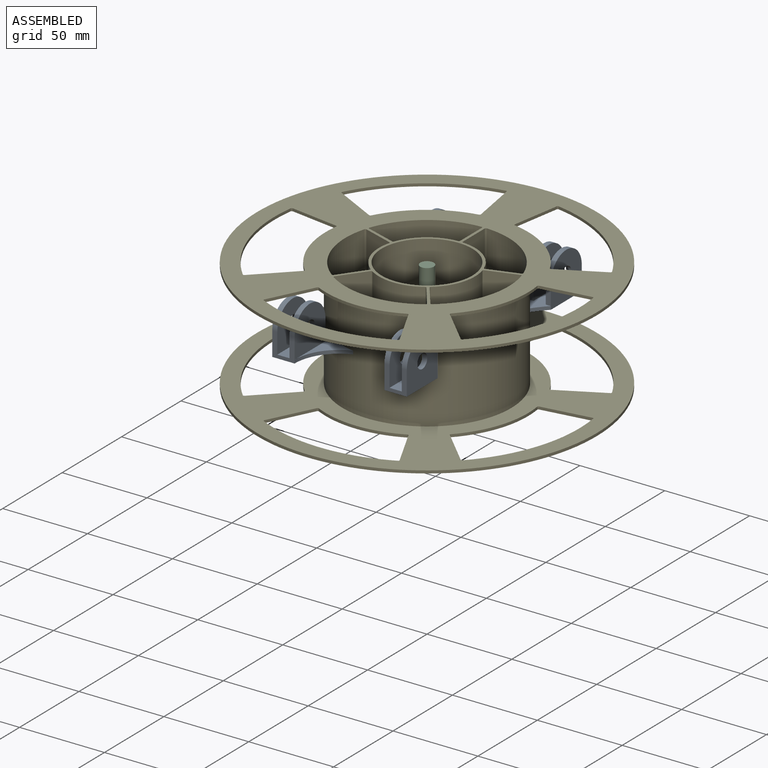
[diagram: assembled view]
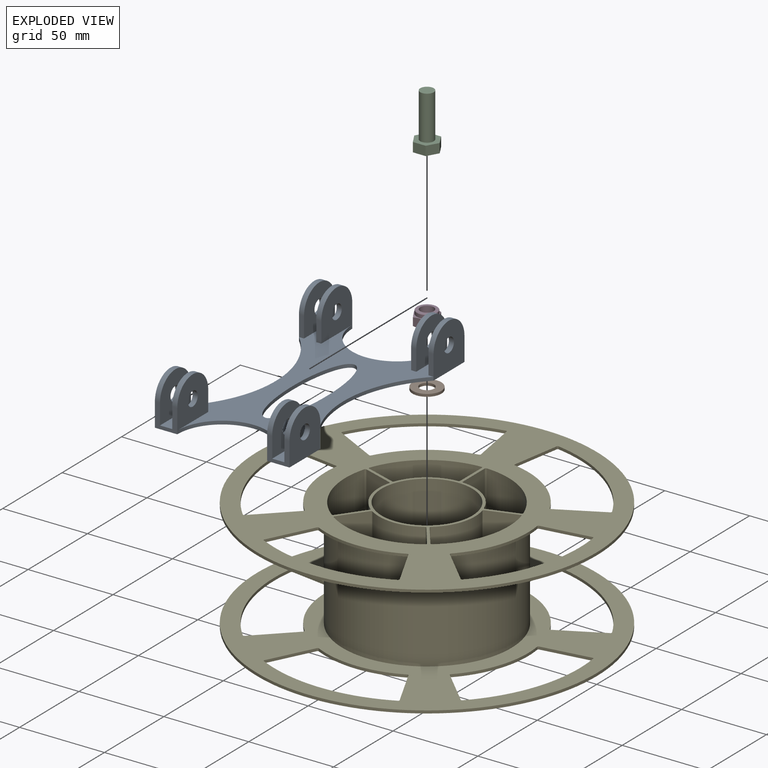
[diagram: exploded view]
GUIDED TOUR — FREECAD ASSEMBLY "FilamentSpoolRoller"

This assembly has 5 components, labeled P0..P4 below (a component is one placed body or linked part; the same part can appear more than once), held together by 0 modeled joints plus 7 derived contact edges. A joint is a constraint between two components; its type names the relative motion it leaves free:
  CONTACT — a derived adjacency edge — the two components touch in the source model (clearance under 2% of the assembly's diagonal); it is measured from the geometry, not a modeled constraint.
Axis/direction vectors are unit vectors and 'through' points are millimeter coordinates, both in the assembly's world frame.

MATES
  1. CONTACT "contact_0_1": P0 <-> P1, contact direction (0.000, 0.000, -1.000) through (9.24, 0.46, 0.00) mm (derived from contact, not a modeled constraint)
  2. CONTACT "contact_0_2": P0 <-> P2, contact direction (0.000, 0.000, 1.000) through (8.75, 0.25, 0.00) mm (derived from contact, not a modeled constraint)
  3. CONTACT "contact_0_3": P0 <-> P3, contact direction (0.000, 0.000, -1.000) through (8.75, 0.25, 0.25) mm (derived from contact, not a modeled constraint)
  4. CONTACT "contact_0_4": P0 <-> P4, contact direction (0.000, 0.000, -1.000) through (-26.73, -55.20, 28.80) mm (derived from contact, not a modeled constraint)
  5. CONTACT "contact_1_2": P1 <-> P2, contact direction (0.000, 0.000, 1.000) through (8.00, 0.00, 0.00) mm (derived from contact, not a modeled constraint)
  6. CONTACT "contact_1_3": P1 <-> P3, contact direction (0.000, 0.000, 1.000) through (0.31, 4.09, 0.00) mm (derived from contact, not a modeled constraint)
  7. CONTACT "contact_2_3": P2 <-> P3, contact direction (0.000, 0.000, -1.000) through (7.51, 0.00, 0.25) mm (derived from contact, not a modeled constraint)

ASSEMBLY ORDER
  1. P3 — the base component [order verified]
  2. P1 [order verified]
  3. P4 [order verified]
  4. P0 [order verified]
  5. P2 [order verified]
(P1, P2 verified with a relaxed clearance tolerance: the source model stores slight part interference there.)
Order-tag legend:
  [order verified] — this step's position reverses a verified removal order: the component was checked to insert without passing through the ones already placed.

Of the 5 components, 5 carry a construction recipe — the FreeCAD feature program (sketches with constraints, then the solid features that consume them) that regenerates the part from scratch, quoted from this document or from the linked companion document it references; the rest are supplied as boundary geometry only. The tour below walks the components in assembly order: each is shown spotlighted twice — in the assembled view, then in the exploded view, where a leader line traces a displaced component back to its assembled socket (components that stay in place when exploded have no leader line; saturated green if recipe-attached, orange if geometry-only; every other component desaturated gray) — followed by its recipe or geometry summary and the mates that hold it.
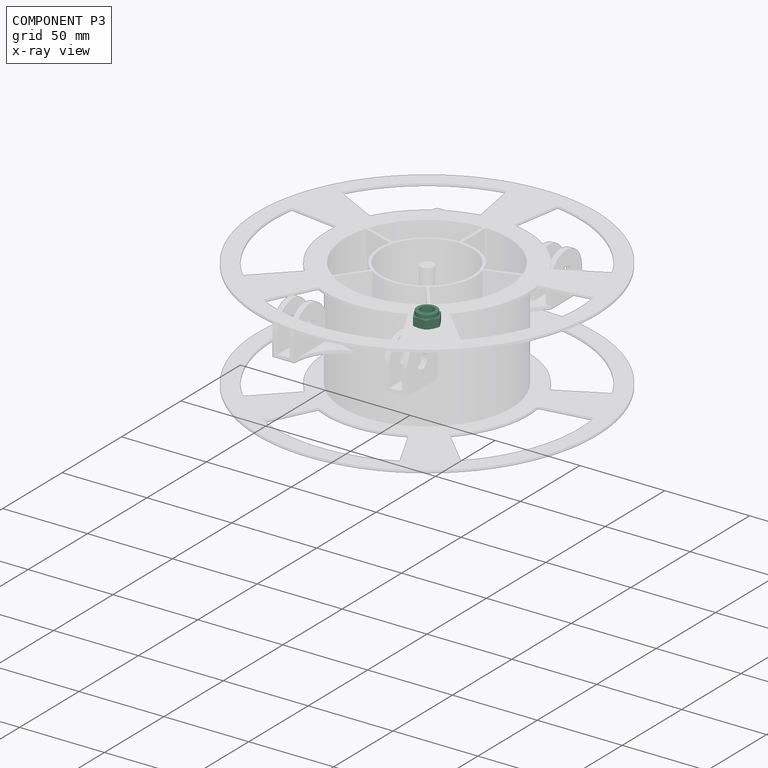
[diagram: component P3 — x-ray view]
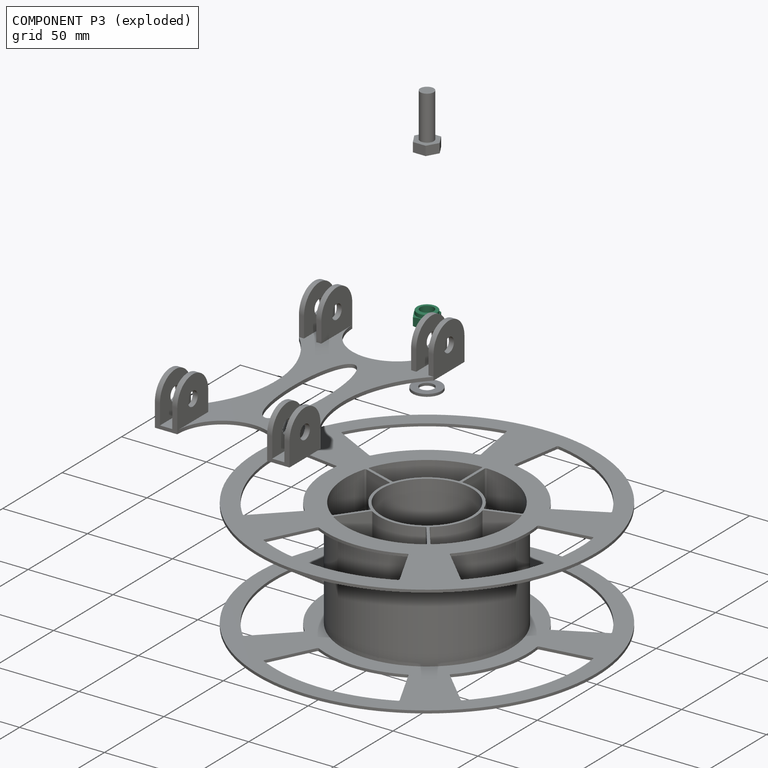
[diagram: component P3 — exploded]
COMPONENT P3 — recipe-attached ("Nut", modeled in this document).
Held by: resting contact with P0 (derived edge); resting contact with P1 (derived edge); resting contact with P2 (derived edge).
Construction recipe (the document's own serialized feature program — sketch geometry with constraints, then the solid features built on it; lengths are millimeters unless a unit is written):

FEATURE [Sketcher::SketchObject] Sketch007
  ArcFitTolerance = 1e-06
  AttachmentSupport = -> [XY_Plane004]
  FullyConstrained = true
  MakeInternals = false
  MapMode = 5
  expr: Constraints[19] = <<Spreadsheet>>.NutSize
  expr: Constraints[21] = <<Spreadsheet>>.BoltDiameter
  sketch-geometry (8):
    g0: LineSegment StartX=7.50555 StartY=0 StartZ=0 EndX=3.75278 EndY=6.5 EndZ=0
    g1: LineSegment StartX=3.75278 StartY=6.5 StartZ=0 EndX=-3.75278 EndY=6.5 EndZ=0
    g2: LineSegment StartX=-3.75278 StartY=6.5 StartZ=0 EndX=-7.50555 EndY=0 EndZ=0
    g3: LineSegment StartX=-7.50555 StartY=0 StartZ=0 EndX=-3.75278 EndY=-6.5 EndZ=0
    g4: LineSegment StartX=-3.75278 StartY=-6.5 StartZ=0 EndX=3.75278 EndY=-6.5 EndZ=0
    g5: LineSegment StartX=3.75278 StartY=-6.5 StartZ=0 EndX=7.50555 EndY=0 EndZ=0
    g6: Circle [constr] CenterX=0 CenterY=0 CenterZ=0 NormalX=0 NormalY=0 NormalZ=1 AngleXU=0 Radius=7.50555
    g7: Circle CenterX=0 CenterY=0 CenterZ=0 NormalX=0 NormalY=0 NormalZ=1 AngleXU=0 Radius=4
  constraints (18):
    c: Coincident(g0,g1)
    c: Coincident(g1,g2)
    c: Coincident(g2,g3)
    c: Coincident(g3,g4)
    c: Coincident(g4,g5)
    c: Coincident(g5,g0)
    c: Equal(g0, g1-g5) x5
    c: PointOnObject(g0,g6)
    c: PointOnObject(g1,g6)
    c: PointOnObject(g2,g6)
    c: PointOnObject(g3,g6)
    c: PointOnObject(g4,g6)
    c: PointOnObject(g5,g6)
    c: Coincident(g6,g-1)
    c: PointOnObject(g5,g-1)
    c: DistanceY(g3,g1) = 13
    c: Coincident(g7,g6)
    c: Diameter(g7) = 8
FEATURE [PartDesign::Pad] Pad004
  Direction = (0,0,1)
  Length = 5.5
  Length2 = 10
  Profile = -> Sketch007
  ReferenceAxis = -> Sketch007 [N_Axis]
  Refine = true
  Suppressed = false
  Type = 0
  expr: Length = <<Spreadsheet>>.NutHeight
FEATURE [Sketcher::SketchObject] Sketch008
  ArcFitTolerance = 1e-06
  AttachmentSupport = -> [XZ_Plane004]
  ExternalGeometry = -> [Pad004]
  FullyConstrained = true
  MakeInternals = false
  MapMode = 5
  Placement = pos=(0,0,0) rot=(1,0,0;1.5708rad)
  expr: Constraints[13] = <<Spreadsheet>>.LockNutTotalHeight
  expr: Constraints[14] = <<Spreadsheet>>.BoltDiameter / 2 + 2 mm
  expr: Constraints[8] = Spreadsheet.BoltDiameter / 2
  sketch-geometry (6):
    g0: LineSegment StartX=4 StartY=5.5 StartZ=0 EndX=6 EndY=5.5 EndZ=0
    g1: LineSegment StartX=6 StartY=5.5 StartZ=0 EndX=6 EndY=7.4 EndZ=0
    g2: LineSegment StartX=5.5 StartY=7.9 StartZ=0 EndX=4 EndY=7.9 EndZ=0
    g3: LineSegment StartX=4 StartY=7.9 StartZ=0 EndX=4 EndY=5.5 EndZ=0
    g4: ArcOfCircle CenterX=5.5 CenterY=7.4 CenterZ=0 NormalX=0 NormalY=0 NormalZ=1 AngleXU=0 Radius=0.5 StartAngle=7.003e-13 EndAngle=1.5708
    g5: GeomPoint [constr] X=6 Y=7.9 Z=0
  constraints (16):
    c: Horizontal(g0)
    c: Coincident(g0,g1)
    c: Vertical(g1)
    c: Horizontal(g2)
    c: Coincident(g2,g3)
    c: Coincident(g3,g0)
    c: Vertical(g3)
    c: PointOnObject(g0,g-3)
    c: DistanceX(g-1,g0) = 4
    c: PointOnObject(g5,g1)
    c: PointOnObject(g5,g2)
    c: Tangent(g1,g4) = -1.5708
    c: Tangent(g2,g4) = -1.5708
    c: DistanceY(g2) = 7.9
    c: DistanceX(g0) = 6
    c: Radius(g4) = 0.5
FEATURE [PartDesign::Revolution] Revolution
  Angle = 360
  Angle2 = 60
  Axis = (0,2e-16,1)
  Base = (0,0,0)
  BaseFeature = -> Pad004
  Profile = -> Sketch008
  ReferenceAxis = -> Sketch008 [V_Axis]
  Refine = true
  Reversed = true
  Suppressed = false
  Type = 0
FEATURE [Sketcher::SketchObject] Sketch009
  ArcFitTolerance = 1e-06
  AttachmentSupport = -> [XZ_Plane004]
  ExternalGeometry = -> [Revolution]
  FullyConstrained = true
  MakeInternals = false
  MapMode = 5
  Placement = pos=(0,0,0) rot=(1,0,0;1.5708rad)
  sketch-geometry (6):
    g0: LineSegment StartX=7.50555 StartY=5.5 StartZ=0 EndX=6.30555 EndY=5.5 EndZ=0
    g1: LineSegment StartX=6.30555 StartY=5.5 StartZ=0 EndX=7.50555 EndY=5 EndZ=0
    g2: LineSegment StartX=7.50555 StartY=5 StartZ=0 EndX=7.50555 EndY=5.5 EndZ=0
    g3: LineSegment StartX=7.50555 StartY=0 StartZ=0 EndX=6.30555 EndY=0 EndZ=0
    g4: LineSegment StartX=6.30555 StartY=0 StartZ=0 EndX=7.50555 EndY=0.5 EndZ=0
    g5: LineSegment StartX=7.50555 StartY=0.5 StartZ=0 EndX=7.50555 EndY=0 EndZ=0
  constraints (16):
    c: Coincident(g-3,g0)
    c: Horizontal(g0)
    c: Coincident(g0,g1)
    c: PointOnObject(g1,g-3)
    c: Coincident(g1,g2)
    c: Coincident(g2,g0)
    c: Coincident(g-3,g3)
    c: PointOnObject(g3,g-1)
    c: Coincident(g3,g4)
    c: PointOnObject(g4,g-3)
    c: Coincident(g4,g5)
    c: Coincident(g5,g3)
    c: Equal(g5,g2)
    c: Equal(g3,g0)
    c: DistanceY(g2,g2) = 0.5
    c: DistanceX(g0,g0) = 1.2
FEATURE [PartDesign::Groove] Groove001
  Angle = 360
  Angle2 = 60
  Axis = (0,2e-16,1)
  Base = (0,0,0)
  BaseFeature = -> Revolution
  Profile = -> Sketch009
  ReferenceAxis = -> Sketch009 [V_Axis]
  Refine = true
  Suppressed = false
  Type = 0
FEATURE [PartDesign::CoordinateSystem] MountFace002
  AttacherType = Attacher::AttachEngine3D
  AttachmentSupport = -> [Groove001]
  MapMode = 11
  Placement = pos=(0,0,0) rot=(0,0,1;1.5708rad)
FEATURE [PartDesign::Body] Body003  label="Nut"
  AllowCompound = false
  Group = -> [Sketch007,Pad004,Sketch008,Revolution,Sketch009,Groove001,MountFace002]
  Origin = -> Origin004
  Tip = -> Groove001
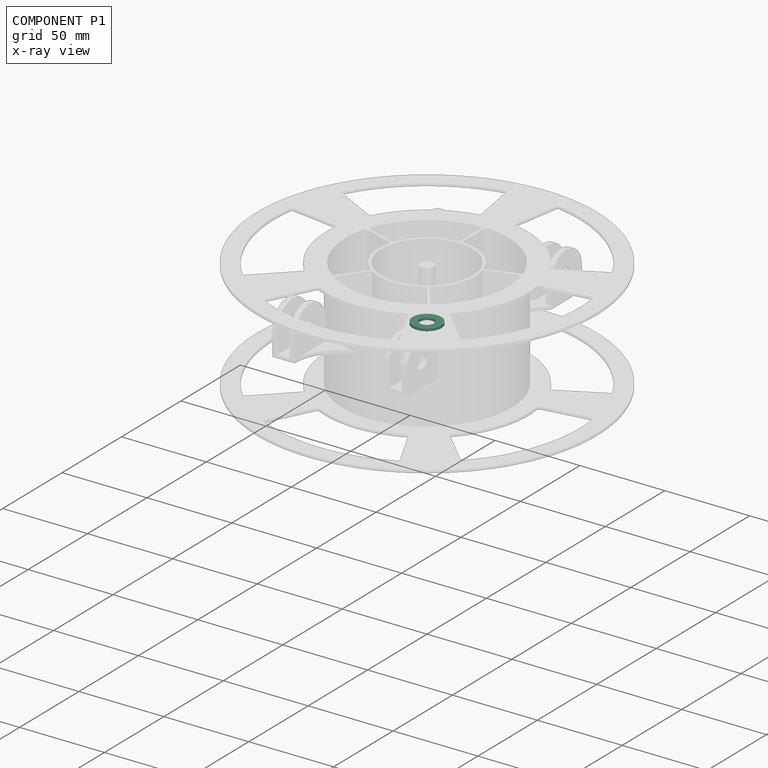
[diagram: component P1 — x-ray view]
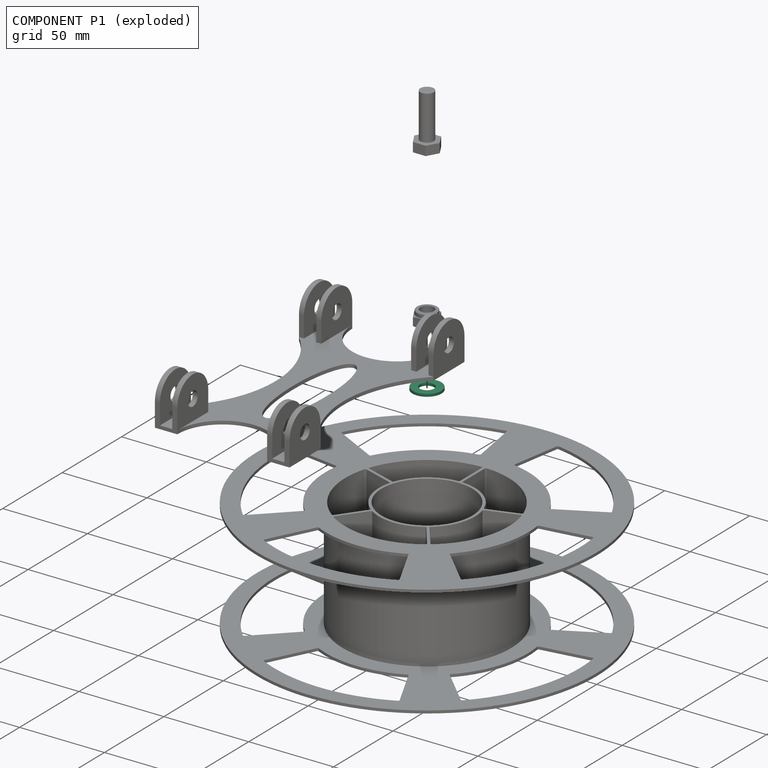
[diagram: component P1 — exploded]
COMPONENT P1 — recipe-attached ("Washer", modeled in this document).
Held by: resting contact with P0 (derived edge); resting contact with P2 (derived edge); resting contact with P3 (derived edge).
Construction recipe (the document's own serialized feature program — sketch geometry with constraints, then the solid features built on it; lengths are millimeters unless a unit is written):

FEATURE [Sketcher::SketchObject] Sketch003
  ArcFitTolerance = 1e-06
  AttachmentSupport = -> [XY_Plane002]
  FullyConstrained = true
  MakeInternals = false
  MapMode = 5
  expr: Constraints[2] = Spreadsheet.WasherOuterDiameter
  expr: Constraints[3] = <<Spreadsheet>>.WasherInnerDiameter
  sketch-geometry (2):
    g0: Circle CenterX=0 CenterY=0 CenterZ=0 NormalX=0 NormalY=0 NormalZ=1 AngleXU=0 Radius=4.2
    g1: Circle CenterX=0 CenterY=0 CenterZ=0 NormalX=0 NormalY=0 NormalZ=1 AngleXU=0 Radius=8.5
  constraints (4):
    c: Coincident(g0,g-1)
    c: Coincident(g1,g0)
    c: Diameter(g1) = 17
    c: Diameter(g0) = 8.4
FEATURE [PartDesign::Pad] Pad001
  Direction = (0,0,1)
  Length = 1.5
  Length2 = 10
  Profile = -> Sketch003
  ReferenceAxis = -> Sketch003 [N_Axis]
  Refine = true
  Suppressed = false
  Type = 0
  expr: Length = <<Spreadsheet>>.WasherThickness
FEATURE [PartDesign::CoordinateSystem] Side1
  AttacherType = Attacher::AttachEngine3D
  AttachmentSupport = -> [Pad001]
  MapMode = 11
  Placement = pos=(0,0,1.5) rot=(0,0,1;1.5708rad)
FEATURE [PartDesign::CoordinateSystem] Side2
  AttacherType = Attacher::AttachEngine3D
  AttachmentSupport = -> [Pad001]
  MapMode = 11
  Placement = pos=(0,0,0) rot=(0,0,1;1.5708rad)
FEATURE [PartDesign::Body] Body001  label="Washer"
  AllowCompound = false
  Group = -> [Sketch003,Pad001,Side1,Side2]
  Origin = -> Origin002
  Tip = -> Pad001
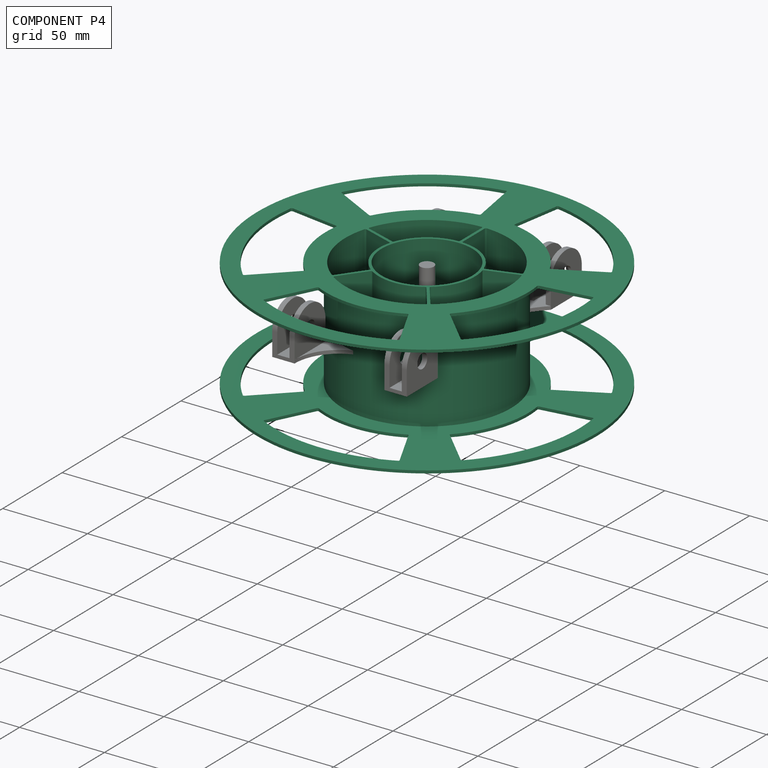
[diagram: component P4 — assembled]
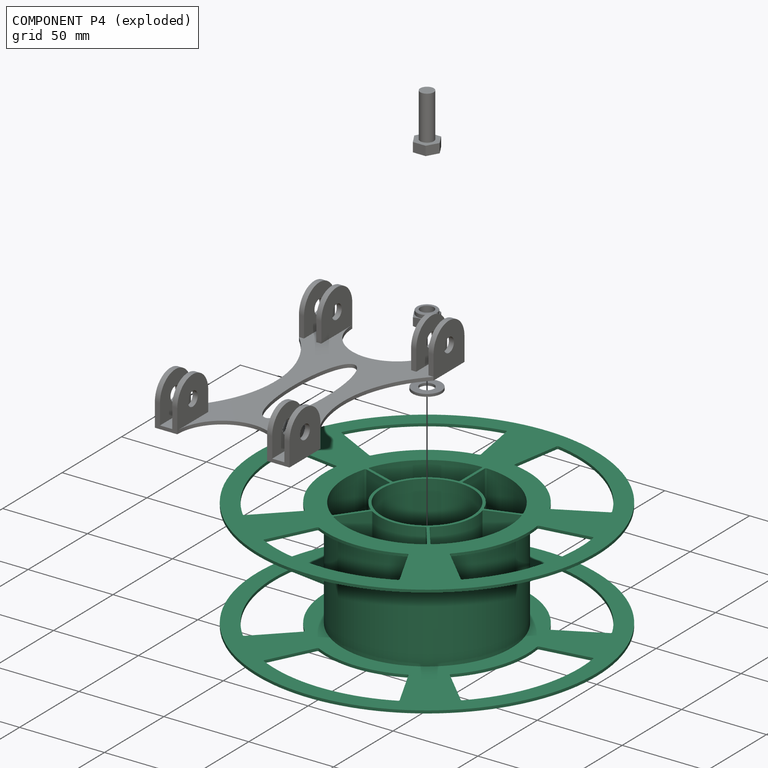
[diagram: component P4 — exploded]
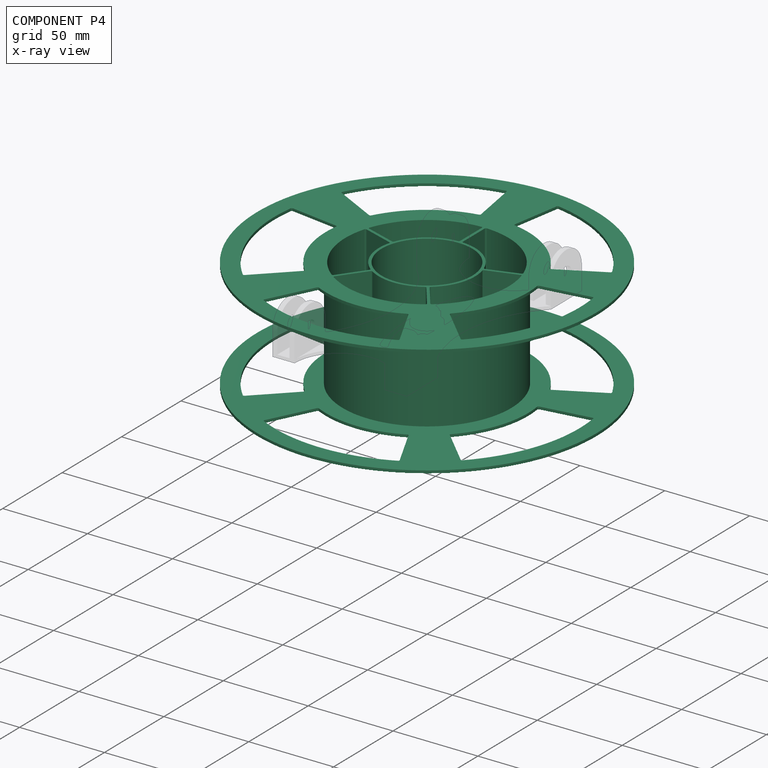
[diagram: component P4 — x-ray view]
COMPONENT P4 — recipe-attached ("Spool", modeled in this document).
Held by: resting contact with P0 (derived edge).
Construction recipe (the document's own serialized feature program — sketch geometry with constraints, then the solid features built on it; lengths are millimeters unless a unit is written):

FEATURE [Sketcher::SketchObject] Sketch010
  ArcFitTolerance = 1e-06
  AttachmentSupport = -> [XZ_Plane005]
  FullyConstrained = true
  MakeInternals = false
  MapMode = 5
  Placement = pos=(0,0,0) rot=(1,0,0;1.5708rad)
  expr: Constraints[18] = <<Spreadsheet>>.SpoolSideThickness
  expr: Constraints[19] = <<Spreadsheet>>.SpoolOuterWidth
  expr: Constraints[20] = Spreadsheet.SpoolOuterDiameter / 2
  expr: Constraints[21] = <<Spreadsheet>>.SpoolCenterHoleDiameter / 2
  expr: Constraints[22] = <<Spreadsheet>>.SpoolInnerDiameter / 2
  sketch-geometry (8):
    g0: LineSegment StartX=26.75 StartY=32.95 StartZ=0 EndX=26.75 EndY=-32.95 EndZ=0
    g1: LineSegment StartX=26.75 StartY=-32.95 StartZ=0 EndX=100 EndY=-32.95 EndZ=0
    g2: LineSegment StartX=100 StartY=-32.95 StartZ=0 EndX=100 EndY=-31.35 EndZ=0
    g3: LineSegment StartX=100 StartY=-31.35 StartZ=0 EndX=49.75 EndY=-31.35 EndZ=0
    g4: LineSegment StartX=49.75 StartY=-31.35 StartZ=0 EndX=49.75 EndY=31.35 EndZ=0
    g5: LineSegment StartX=49.75 StartY=31.35 StartZ=0 EndX=100 EndY=31.35 EndZ=0
    g6: LineSegment StartX=100 StartY=31.35 StartZ=0 EndX=100 EndY=32.95 EndZ=0
    g7: LineSegment StartX=100 StartY=32.95 StartZ=0 EndX=26.75 EndY=32.95 EndZ=0
  constraints (23):
    c: Coincident(g0,g1)
    c: Horizontal(g1)
    c: Coincident(g1,g2)
    c: Vertical(g2)
    c: Coincident(g2,g3)
    c: Horizontal(g3)
    c: Coincident(g3,g4)
    c: Vertical(g4)
    c: Coincident(g4,g5)
    c: Horizontal(g5)
    c: Coincident(g5,g6)
    c: Coincident(g6,g7)
    c: Coincident(g7,g0)
    c: Horizontal(g7)
    c: Vertical(g6)
    c: Equal(g5,g3)
    c: Equal(g2,g6)
    c: Symmetric(g0,g0,g-1)
    c: DistanceY(g6,g6) = 1.6
    c: DistanceY(g1,g6) = 65.9
    c: DistanceX(g6) = 100
    c: DistanceX(g0) = 26.75
    c: DistanceX(g3) = 49.75
FEATURE [PartDesign::Revolution] Revolution001
  Angle = 360
  Angle2 = 60
  Axis = (0,2e-16,1)
  Base = (0,0,0)
  Placement = pos=(0,0,0) rot=(1,0,0;1.5708rad)
  Profile = -> Sketch010
  ReferenceAxis = -> Sketch010 [V_Axis]
  Refine = true
  Reversed = true
  Suppressed = false
  Type = 0
FEATURE [PartDesign::CoordinateSystem] Center
  AttacherType = Attacher::AttachEngine3D
  AttachmentSupport = -> [Revolution001]
  MapMode = 45
  Placement = pos=(0,-3e-16,4e-16) rot=(0,0,1;0rad)
FEATURE [Sketcher::SketchObject] Sketch012
  ArcFitTolerance = 1e-06
  AttachmentSupport = -> [Revolution001]
  ExternalGeometry = -> [Revolution001]
  FullyConstrained = true
  MakeInternals = false
  MapMode = 5
  Placement = pos=(0,7.3e-15,32.95) rot=(0,0,1;3.14159rad)
  expr: Constraints[12] = Spreadsheet.SpoolSideThickness
  expr: Constraints[13] = <<Spreadsheet>>.SpoolSideThickness
  expr: Constraints[16] = <<Spreadsheet>>.SpoolSideThickness / 2
  expr: Constraints[31] = <<Spreadsheet>>.SpoolOuterDiameter / 2 - <<Spreadsheet>>.SpoolWideParts
  expr: Constraints[32] = <<Spreadsheet>>.SpoolWideParts
  expr: Constraints[37] = 360 / <<Spreadsheet>>.SpoolNumberOfCutouts
  expr: Constraints[42] = <<Spreadsheet>>.SpoolSideThickness / 2
  expr: Constraints[43] = <<Spreadsheet>>.SpoolWideParts
  sketch-geometry (19):
    g0: ArcOfCircle CenterX=0 CenterY=0 CenterZ=0 NormalX=0 NormalY=0 NormalZ=1 AngleXU=0 Radius=28.35 StartAngle=0.997394 EndAngle=2.1442
    g1: ArcOfCircle CenterX=0 CenterY=0 CenterZ=0 NormalX=0 NormalY=0 NormalZ=1 AngleXU=0 Radius=48.15 StartAngle=0.976275 EndAngle=2.16532
    g2: LineSegment StartX=16.4609 StartY=24.0175 StartZ=0 EndX=27.1685 EndY=38.7553 EndZ=0
    g3: LineSegment StartX=-16.4609 StartY=24.0175 StartZ=0 EndX=-27.1685 EndY=38.7553 EndZ=0
    g4: ArcOfCircle CenterX=-26.5213 CenterY=39.2255 CenterZ=0 NormalX=0 NormalY=0 NormalZ=1 AngleXU=0 Radius=0.8 StartAngle=2.16532 EndAngle=3.76991
    g5: ArcOfCircle CenterX=-15.8137 CenterY=24.4878 CenterZ=0 NormalX=0 NormalY=0 NormalZ=1 AngleXU=0 Radius=0.8 StartAngle=3.76991 EndAngle=5.28579
    g6: ArcOfCircle CenterX=15.8137 CenterY=24.4878 CenterZ=0 NormalX=0 NormalY=0 NormalZ=1 AngleXU=0 Radius=0.8 StartAngle=4.13899 EndAngle=5.65487
    g7: ArcOfCircle CenterX=26.5213 CenterY=39.2255 CenterZ=0 NormalX=0 NormalY=0 NormalZ=1 AngleXU=0 Radius=0.8 StartAngle=5.65487 EndAngle=7.25946
    g8: LineSegment [constr] StartX=0 StartY=0 StartZ=0 EndX=58.7785 EndY=80.9017 EndZ=0
    g9: LineSegment [constr] StartX=0 StartY=0 StartZ=0 EndX=-58.7785 EndY=80.9017 EndZ=0
    g10: ArcOfCircle CenterX=0 CenterY=0 CenterZ=0 NormalX=0 NormalY=0 NormalZ=1 AngleXU=0 Radius=59.75 StartAngle=1.12162 EndAngle=2.01997
    g11: ArcOfCircle CenterX=0 CenterY=0 CenterZ=0 NormalX=0 NormalY=0 NormalZ=1 AngleXU=0 Radius=90 StartAngle=1.11737 EndAngle=2.02422
    g12: LineSegment StartX=-27.0083 StartY=54.1868 StartZ=0 EndX=-39.7896 EndY=79.8298 EndZ=0
    g13: LineSegment StartX=27.0083 StartY=54.1868 StartZ=0 EndX=39.7896 EndY=79.8298 EndZ=0
    g14: ArcOfCircle CenterX=39.0736 CenterY=80.1866 CenterZ=0 NormalX=0 NormalY=0 NormalZ=1 AngleXU=0 Radius=0.8 StartAngle=5.82079 EndAngle=7.40056
    g15: ArcOfCircle CenterX=26.2924 CenterY=54.5437 CenterZ=0 NormalX=0 NormalY=0 NormalZ=1 AngleXU=0 Radius=0.8 StartAngle=4.26321 EndAngle=5.82079
    g16: ArcOfCircle CenterX=-26.2924 CenterY=54.5437 CenterZ=0 NormalX=0 NormalY=0 NormalZ=1 AngleXU=0 Radius=0.8 StartAngle=3.60398 EndAngle=5.16157
    g17: ArcOfCircle CenterX=-39.0736 CenterY=80.1866 CenterZ=0 NormalX=0 NormalY=0 NormalZ=1 AngleXU=0 Radius=0.8 StartAngle=2.02422 EndAngle=3.60398
    g18: LineSegment [constr] StartX=27.0083 StartY=54.1868 StartZ=0 EndX=0 EndY=0 EndZ=0
  constraints (44):
    c: Tangent(g4,g1) = -1.5708
    c: Tangent(g4,g3) = 1.5708
    c: Tangent(g5,g3) = 1.5708
    c: Tangent(g5,g0) = 1.5708
    c: Tangent(g6,g0) = 1.5708
    c: Tangent(g6,g2) = -1.5708
    c: Tangent(g7,g2) = -1.5708
    c: Tangent(g7,g1) = -1.5708
    c: Equal(g7,g6)
    c: Equal(g5,g4)
    c: Coincident(g1,g-1)
    c: Coincident(g1,g0)
    c: Distance(g0,g-3) = 1.6
    c: Distance(g1,g-4) = 1.6
    c: Coincident(g8,g0)
    c: Coincident(g9,g0)
    c: Radius(g7) = 0.8
    c: Coincident(g10,g0)
    c: Coincident(g11,g0)
    c: Equal(g17,g14)
    c: Equal(g14,g15)
    c: Equal(g15,g16)
    c: Equal(g16,g4)
    c: Tangent(g16,g10) = 1.5708
    c: Tangent(g16,g12) = 1.5708
    c: Tangent(g17,g12) = 1.5708
    c: Tangent(g17,g11) = -1.5708
    c: Tangent(g14,g11) = -1.5708
    c: Tangent(g14,g13) = -1.5708
    c: Tangent(g15,g13) = -1.5708
    c: Tangent(g15,g10) = 1.5708
    c: Radius(g11) = 90
    c: Distance(g10,g-4) = 10
    c: Coincident(g18,g0)
    c: Tangent(g18,g13) = 1.5708
    c: PointOnObject(g9,g-5)
    c: Symmetric(g8,g9,g-2)
    c: Angle(g8,g9) = 1.25664
    c: Symmetric(g2,g3,g-2)
    c: Symmetric(g13,g12,g-2)
    c: Parallel(g8,g2)
    c: Parallel(g9,g3)
    c: Distance(g2,g8) = 0.8
    c: Distance(g12,g9) = 10
FEATURE [PartDesign::Pocket] Pocket002
  BaseFeature = -> Revolution001
  Direction = (0,0,-1)
  Length = 5
  Length2 = 5
  Placement = pos=(0,0,0) rot=(1,0,0;1.5708rad)
  Profile = -> Sketch012
  ReferenceAxis = -> Sketch012 [N_Axis]
  Refine = true
  Suppressed = false
  Type = 1
FEATURE [PartDesign::PolarPattern] PolarPattern
  Angle = 360
  Axis = -> Sketch012 [N_Axis]
  BaseFeature = -> Pocket002
  Mode = 0
  Occurrences = 5
  Offset = 120
  Originals = -> [Pocket002]
  Placement = pos=(0,0,0) rot=(1,0,0;1.5708rad)
  Refine = true
  Suppressed = false
  TransformMode = 0
  expr: Occurrences = <<Spreadsheet>>.SpoolNumberOfCutouts
FEATURE [PartDesign::Body] Body004  label="Spool"
  AllowCompound = false
  Group = -> [Sketch010,Revolution001,Center,Sketch012,Pocket002,PolarPattern]
  Origin = -> Origin005
  Tip = -> PolarPattern
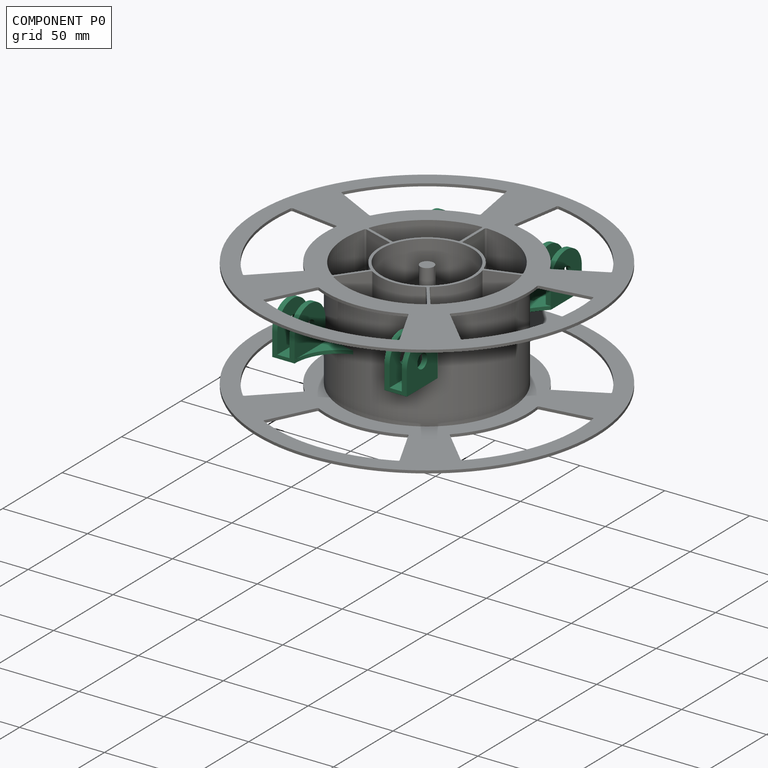
[diagram: component P0 — assembled]
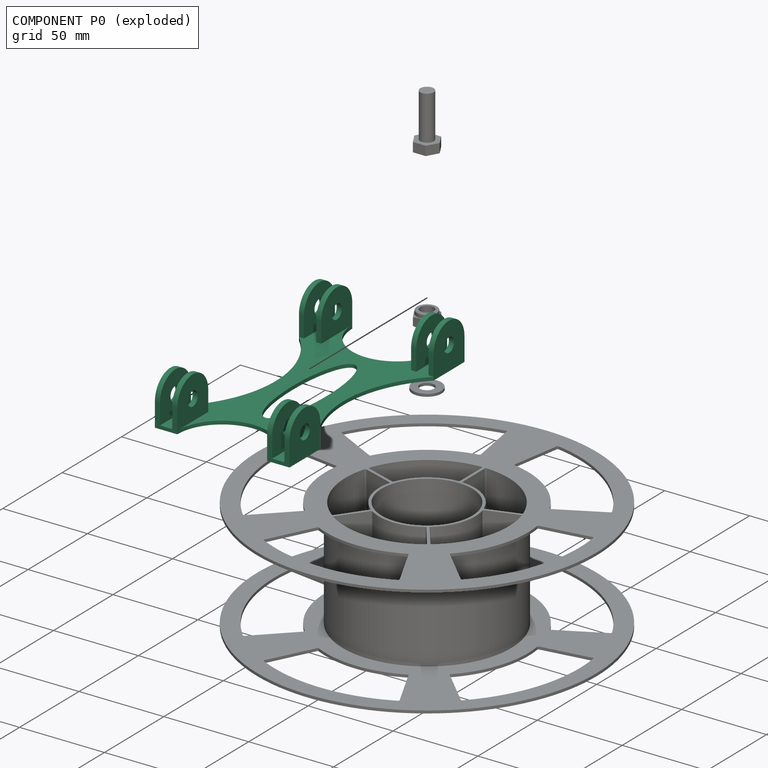
[diagram: component P0 — exploded]
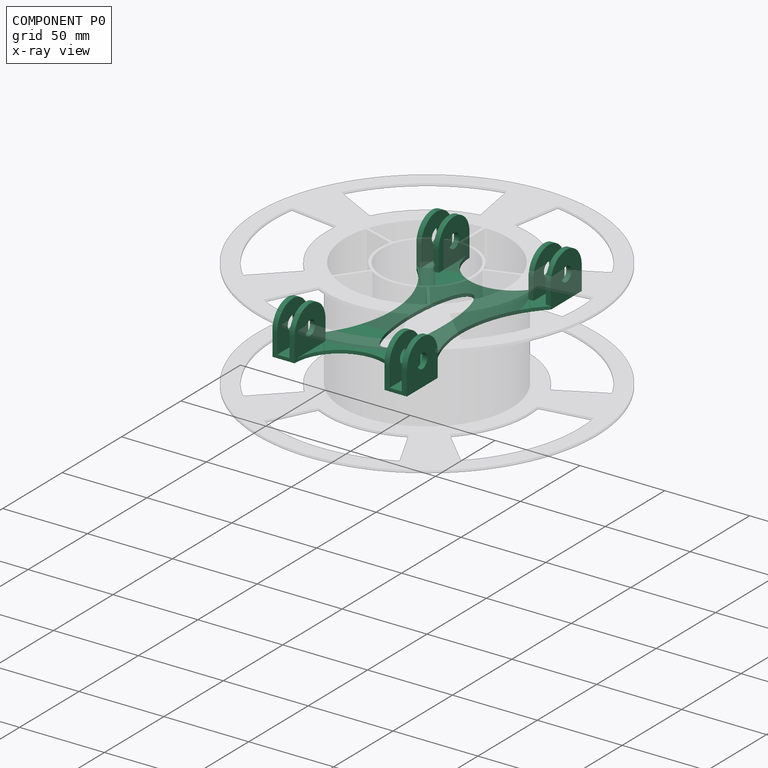
[diagram: component P0 — x-ray view]
COMPONENT P0 — recipe-attached ("Roller", modeled in this document).
Held by: resting contact with P1 (derived edge); resting contact with P2 (derived edge); resting contact with P3 (derived edge); resting contact with P4 (derived edge).
Construction recipe (the document's own serialized feature program — sketch geometry with constraints, then the solid features built on it; lengths are millimeters unless a unit is written):

FEATURE [Sketcher::SketchObject] Sketch
  ArcFitTolerance = 1e-06
  AttachmentSupport = -> [YZ_Plane001]
  FullyConstrained = true
  MakeInternals = false
  MapMode = 5
  Placement = pos=(0,0,0) rot=(0.57735,0.57735,0.57735;2.0944rad)
  expr: .Constraints.SpoolCenterZ = <<Spreadsheet>>.SpoolOuterDiameter / 2 + <<Spreadsheet>>.SpoolDiameterTolerance + <<Spreadsheet>>.RollerBottomThickness
  expr: Constraints[1] = <<Spreadsheet>>.SpoolOuterDiameter
  expr: Constraints[25] = <<Spreadsheet>>.RollerBottomThickness
  expr: Constraints[26] = <<Spreadsheet>>.BearingMountDiameter
  expr: Constraints[30] = <<Spreadsheet>>.BoltDiameter + <<Spreadsheet>>.BoltDiameterTolerance * 2
  expr: Constraints[5] = Spreadsheet.BearingOuterDiameter
  expr: Constraints[7] = Spreadsheet.BearingOuterDiameter / 2 + Spreadsheet.BearingDiameterTolerance + Spreadsheet.RollerBottomThickness
  sketch-geometry (13):
    g0: Circle [constr] CenterX=0 CenterY=107 CenterZ=0 NormalX=0 NormalY=0 NormalZ=1 AngleXU=0 Radius=100
    g1: Circle [constr] CenterX=-60.597 CenterY=14 CenterZ=0 NormalX=0 NormalY=0 NormalZ=1 AngleXU=0 Radius=11
    g2: Circle [constr] CenterX=60.597 CenterY=14 CenterZ=0 NormalX=0 NormalY=0 NormalZ=1 AngleXU=0 Radius=11
    g3: ArcOfCircle CenterX=-60.597 CenterY=14 CenterZ=0 NormalX=0 NormalY=0 NormalZ=1 AngleXU=0 Radius=13 StartAngle=1e-16 EndAngle=3.14159
    g4: ArcOfCircle CenterX=60.597 CenterY=14 CenterZ=0 NormalX=0 NormalY=0 NormalZ=1 AngleXU=0 Radius=13 StartAngle=1e-16 EndAngle=3.14159
    g5: LineSegment StartX=73.597 StartY=14 StartZ=0 EndX=73.597 EndY=0 EndZ=0
    g6: LineSegment StartX=73.597 StartY=0 StartZ=0 EndX=-73.597 EndY=0 EndZ=0
    g7: LineSegment StartX=-73.597 StartY=0 StartZ=0 EndX=-73.597 EndY=14 EndZ=0
    g8: LineSegment StartX=-47.597 StartY=14 StartZ=0 EndX=-47.597 EndY=2 EndZ=0
    g9: LineSegment StartX=-47.597 StartY=2 StartZ=0 EndX=47.597 EndY=2 EndZ=0
    g10: LineSegment StartX=47.597 StartY=2 StartZ=0 EndX=47.597 EndY=14 EndZ=0
    g11: Circle CenterX=60.597 CenterY=14 CenterZ=0 NormalX=0 NormalY=0 NormalZ=1 AngleXU=0 Radius=4.2
    g12: Circle CenterX=-60.597 CenterY=14 CenterZ=0 NormalX=0 NormalY=0 NormalZ=1 AngleXU=0 Radius=4.2
  constraints (31):
    c: PointOnObject(g0,g-2)
    c: Diameter(g0) = 200
    c: DistanceY(g0) = 107  'SpoolCenterZ'
    c: Symmetric(g2,g1,g-2)
    c: Equal(g2,g1)
    c: Diameter(g2) = 22
    c: Tangent(g2,g0)
    c: DistanceY(g2) = 14
    c: Coincident(g3,g1)
    c: Coincident(g4,g2)
    c: Tangent(g4,g5) = 1.5708
    c: Coincident(g5,g6)
    c: PointOnObject(g6,g-1)
    c: Coincident(g6,g7)
    c: Vertical(g7)
    c: Tangent(g3,g8) = 1.5708
    c: Coincident(g8,g9)
    c: Horizontal(g9)
    c: Coincident(g9,g10)
    c: Tangent(g7,g3) = 1.5708
    c: Tangent(g10,g4) = 1.5708
    c: Vertical(g5)
    c: Vertical(g10)
    c: Vertical(g8)
    c: Symmetric(g6,g5,g-2)
    c: DistanceY(g9) = 2
    c: Diameter(g4) = 26
    c: Coincident(g11,g2)
    c: Coincident(g12,g1)
    c: Equal(g12,g11)
    c: Diameter(g11) = 8.4
FEATURE [PartDesign::Pad] Pad
  Direction = (1,0,0)
  Length = 79.3
  Length2 = 10
  Midplane = true
  Placement = pos=(0,0,0) rot=(1,1,1;2.0944rad)
  Profile = -> Sketch
  ReferenceAxis = -> Sketch [N_Axis]
  Refine = true
  Suppressed = false
  Type = 0
  expr: Length = <<Spreadsheet>>.RollerTotalWidth
FEATURE [Sketcher::SketchObject] Sketch001
  ArcFitTolerance = 1e-06
  AttachmentSupport = -> [Pad]
  ExternalGeometry = -> [Pad]
  FullyConstrained = true
  MakeInternals = false
  MapMode = 5
  Placement = pos=(-1.63e-14,-73.597,8.2e-15) rot=(0.57735,0.57735,-0.57735;2.0944rad)
  expr: Constraints[11] = <<Spreadsheet>>.RollerBottomThickness
  expr: Constraints[31] = <<Spreadsheet>>.BearingMountThickness
  expr: Constraints[34] = <<Spreadsheet>>.BearingWidth + Spreadsheet.BearingWidthTolerance * 2
  expr: Constraints[35] = Spreadsheet.BearingMountThickness
  sketch-geometry (13):
    g0: LineSegment StartX=-2 StartY=-26.45 StartZ=0 EndX=-2 EndY=26.45 EndZ=0
    g1: LineSegment StartX=-2 StartY=26.45 StartZ=0 EndX=-27 EndY=26.45 EndZ=0
    g2: LineSegment StartX=-27 StartY=26.45 StartZ=0 EndX=-27 EndY=-26.45 EndZ=0
    g3: LineSegment StartX=-27 StartY=-26.45 StartZ=0 EndX=-2 EndY=-26.45 EndZ=0
    g4: GeomPoint [constr] X=-14.5 Y=0 Z=0
    g5: LineSegment StartX=-27 StartY=36.65 StartZ=0 EndX=-27 EndY=29.45 EndZ=0
    g6: LineSegment StartX=-27 StartY=29.45 StartZ=0 EndX=-2 EndY=29.45 EndZ=0
    g7: LineSegment StartX=-2 StartY=29.45 StartZ=0 EndX=-2 EndY=36.65 EndZ=0
    g8: LineSegment StartX=-2 StartY=36.65 StartZ=0 EndX=-27 EndY=36.65 EndZ=0
    g9: LineSegment StartX=-27 StartY=-29.45 StartZ=0 EndX=-27 EndY=-36.65 EndZ=0
    g10: LineSegment StartX=-27 StartY=-36.65 StartZ=0 EndX=-2 EndY=-36.65 EndZ=0
    g11: LineSegment StartX=-2 StartY=-36.65 StartZ=0 EndX=-2 EndY=-29.45 EndZ=0
    g12: LineSegment StartX=-2 StartY=-29.45 StartZ=0 EndX=-27 EndY=-29.45 EndZ=0
  constraints (36):
    c: Coincident(g0,g1)
    c: Coincident(g1,g2)
    c: Coincident(g2,g3)
    c: Coincident(g3,g0)
    c: Vertical(g0)
    c: Vertical(g2)
    c: Horizontal(g1)
    c: Horizontal(g3)
    c: Symmetric(g2,g0,g4)
    c: PointOnObject(g4,g-1)
    c: Vertical(g1,g-3)
    c: DistanceX(g0,g-1) = 2
    c: Coincident(g5,g6)
    c: Coincident(g6,g7)
    c: Coincident(g7,g8)
    c: Coincident(g8,g5)
    c: Vertical(g5)
    c: Vertical(g7)
    c: Horizontal(g6)
    c: Horizontal(g8)
    c: Coincident(g9,g10)
    c: Coincident(g10,g11)
    c: Coincident(g11,g12)
    c: Coincident(g12,g9)
    c: Vertical(g9)
    c: Vertical(g11)
    c: Horizontal(g10)
    c: Horizontal(g12)
    c: Vertical(g6,g0)
    c: Vertical(g0,g11)
    c: Vertical(g9,g2)
    c: DistanceY(g5,g-3) = 3
    c: Equal(g5,g9)
    c: Symmetric(g9,g5,g-1)
    c: DistanceY(g7,g7) = 7.2
    c: DistanceY(g1,g5) = 3
FEATURE [PartDesign::Pocket] Pocket
  BaseFeature = -> Pad
  Direction = (0,1,0)
  Length = 5
  Length2 = 5
  Placement = pos=(0,0,0) rot=(1,1,1;2.0944rad)
  Profile = -> Sketch001
  ReferenceAxis = -> Sketch001 [N_Axis]
  Refine = true
  Suppressed = false
  Type = 1
FEATURE [Sketcher::SketchObject] Sketch002
  ArcFitTolerance = 1e-06
  AttachmentSupport = -> [Pocket]
  ExternalGeometry = -> [Pocket]
  FullyConstrained = true
  MakeInternals = false
  MapMode = 5
  Placement = pos=(-2e-16,8e-16,2) rot=(0,0,-1;1.5708rad)
  expr: Constraints[23] = Spreadsheet.RollerBottomArmWidth
  expr: Constraints[25] = <<Spreadsheet>>.RollerBottomArmWidth
  expr: Constraints[27] = Spreadsheet.RollerBottomCenterHoleWidth
  sketch-geometry (13):
    g0: LineSegment StartX=-73.597 StartY=26.45 StartZ=0 EndX=-73.597 EndY=-26.45 EndZ=0
    g1: LineSegment StartX=-47.597 StartY=-39.65 StartZ=0 EndX=47.597 EndY=-39.65 EndZ=0
    g2: LineSegment StartX=73.597 StartY=-26.45 StartZ=0 EndX=73.597 EndY=26.45 EndZ=0
    g3: LineSegment StartX=47.597 StartY=39.65 StartZ=0 EndX=-47.597 EndY=39.65 EndZ=0
    g4: ArcOfCircle CenterX=-73.597 CenterY=-3.7e-15 CenterZ=0 NormalX=0 NormalY=0 NormalZ=1 AngleXU=0 Radius=26.45 StartAngle=4.71239 EndAngle=7.85398
    g5: ArcOfCircle CenterX=3.33e-14 CenterY=87.4707 CenterZ=0 NormalX=0 NormalY=0 NormalZ=1 AngleXU=0 Radius=67.4707 StartAngle=3.92934 EndAngle=5.49544
    g6: ArcOfCircle CenterX=73.597 CenterY=-3.52e-14 CenterZ=0 NormalX=0 NormalY=0 NormalZ=1 AngleXU=0 Radius=26.45 StartAngle=1.5708 EndAngle=4.71239
    g7: ArcOfCircle CenterX=-1.81e-14 CenterY=-87.4707 CenterZ=0 NormalX=0 NormalY=0 NormalZ=1 AngleXU=0 Radius=67.4707 StartAngle=0.787743 EndAngle=2.35385
    g8: Ellipse CenterX=0 CenterY=0 CenterZ=0 NormalX=0 NormalY=0 NormalZ=1 MajorRadius=37.147 MinorRadius=10 AngleXU=0
    g9: LineSegment [constr] StartX=37.147 StartY=0 StartZ=0 EndX=-37.147 EndY=0 EndZ=0
    g10: LineSegment [constr] StartX=0 StartY=10 StartZ=0 EndX=0 EndY=-10 EndZ=0
    g11: GeomPoint [constr] X=35.7757 Y=0 Z=0
    g12: GeomPoint [constr] X=-35.7757 Y=0 Z=0
  constraints (25):
    c: Coincident(g0,g-3)
    c: Coincident(g0,g-3)
    c: Coincident(g1,g-6)
    c: Coincident(g1,g-6)
    c: Coincident(g2,g-5)
    c: Coincident(g2,g-5)
    c: Coincident(g3,g-4)
    c: Coincident(g3,g-4)
    c: Coincident(g4,g0)
    c: Coincident(g4,g0)
    c: Coincident(g5,g3)
    c: Coincident(g5,g3)
    c: Coincident(g6,g2)
    c: Coincident(g6,g2)
    c: Coincident(g7,g1)
    c: Coincident(g7,g1)
    c: Equal(g5,g7)
    c: Equal(g6,g4)
    c: InternalAlignment(g9-g12 -> g8) x4
    c: Coincident(g8,g-1)
    c: Distance(g10,g5) = 10
    c: PointOnObject(g9,g-1)
    c: Distance(g9,g4) = 10
    c: Perpendicular(g4,g0)
    c: DistanceY(g10,g10) = 20
FEATURE [PartDesign::Pocket] Pocket001
  BaseFeature = -> Pocket
  Direction = (0,0,-1)
  Length = 5
  Length2 = 5
  Placement = pos=(0,0,0) rot=(1,1,1;2.0944rad)
  Profile = -> Sketch002
  ReferenceAxis = -> Sketch002 [N_Axis]
  Refine = true
  Suppressed = false
  Type = 1
FEATURE [PartDesign::CoordinateSystem] BottomCenter
  AttacherType = Attacher::AttachEngine3D
  AttachmentSupport = -> [Pocket001]
  MapMode = 45
  Placement = pos=(2.51276e-11,6.43291e-10,0) rot=(0,0,1;0rad)
FEATURE [PartDesign::CoordinateSystem] Bearing1
  AttacherType = Attacher::AttachEngine3D
  AttachmentSupport = -> [Pocket001]
  MapMode = 45
  Placement = pos=(-33.05,60.597,14) rot=(-0.577349,-0.577349,-0.577352;2.09439rad)
FEATURE [PartDesign::CoordinateSystem] Bearing2
  AttacherType = Attacher::AttachEngine3D
  AttachmentSupport = -> [Pocket001]
  MapMode = 45
  Placement = pos=(33.05,60.597,14) rot=(0.57735,0.57735,0.57735;4.18879rad)
FEATURE [PartDesign::CoordinateSystem] Bearing3
  AttacherType = Attacher::AttachEngine3D
  AttachmentSupport = -> [Pocket001]
  MapMode = 45
  Placement = pos=(-33.05,-60.597,14) rot=(0.57735,0.57735,0.57735;4.18879rad)
FEATURE [PartDesign::CoordinateSystem] Bearing4
  AttacherType = Attacher::AttachEngine3D
  AttachmentSupport = -> [Pocket001]
  MapMode = 45
  Placement = pos=(33.05,-60.597,14) rot=(0.57735,0.57735,0.57735;4.18879rad)
FEATURE [PartDesign::CoordinateSystem] Washer1  label="Washer1a"
  AttacherType = Attacher::AttachEngine3D
  AttachmentSupport = -> [Pocket001]
  MapMode = 11
  Placement = pos=(-39.65,60.597,14) rot=(0.707107,0,0.707107;3.14159rad)
FEATURE [PartDesign::CoordinateSystem] Washer2  label="Washer1b"
  AttacherType = Attacher::AttachEngine3D
  AttachmentSupport = -> [Pocket001]
  MapMode = 11
  Placement = pos=(-26.45,60.597,14) rot=(0.707107,0,-0.707107;3.14159rad)
FEATURE [PartDesign::CoordinateSystem] Washer3  label="Washer2a"
  AttacherType = Attacher::AttachEngine3D
  AttachmentSupport = -> [Pocket001]
  MapMode = 11
  Placement = pos=(26.45,60.597,14) rot=(0.707107,0,-0.707107;3.14159rad)
FEATURE [PartDesign::CoordinateSystem] Washer4  label="Washer2b"
  AttacherType = Attacher::AttachEngine3D
  AttachmentSupport = -> [Pocket001]
  MapMode = 11
  Placement = pos=(39.65,60.597,14) rot=(0.707107,0,0.707107;3.14159rad)
FEATURE [PartDesign::CoordinateSystem] Washer3a
  AttacherType = Attacher::AttachEngine3D
  AttachmentSupport = -> [Pocket001]
  MapMode = 11
  Placement = pos=(39.65,-60.597,14) rot=(0.707107,0,0.707107;3.14159rad)
FEATURE [PartDesign::CoordinateSystem] Washer3b
  AttacherType = Attacher::AttachEngine3D
  AttachmentSupport = -> [Pocket001]
  MapMode = 11
  Placement = pos=(26.45,-60.597,14) rot=(0.707107,0,-0.707107;3.14159rad)
FEATURE [PartDesign::CoordinateSystem] Washer4a
  AttacherType = Attacher::AttachEngine3D
  AttachmentSupport = -> [Pocket001]
  MapMode = 11
  Placement = pos=(-26.45,-60.597,14) rot=(0.707107,0,-0.707107;3.14159rad)
FEATURE [PartDesign::CoordinateSystem] Washer4b
  AttacherType = Attacher::AttachEngine3D
  AttachmentSupport = -> [Pocket001]
  MapMode = 11
  Placement = pos=(-39.65,-60.597,14) rot=(0.707107,0,0.707107;3.14159rad)
FEATURE [Sketcher::SketchObject] Sketch011
  ArcFitTolerance = 1e-06
  AttachmentSupport = -> [YZ_Plane001]
  FullyConstrained = true
  MakeInternals = false
  MapMode = 5
  Placement = pos=(0,0,0) rot=(0.57735,0.57735,0.57735;2.0944rad)
  expr: Constraints[1] = <<Spreadsheet>>.SpoolOuterDiameter
  expr: Constraints[2] = <<Sketch>>.Constraints.SpoolCenterZ
  sketch-geometry (1):
    g0: Circle CenterX=0 CenterY=107 CenterZ=0 NormalX=0 NormalY=0 NormalZ=1 AngleXU=0 Radius=100
  constraints (3):
    c: PointOnObject(g0,g-2)
    c: Diameter(g0) = 200
    c: DistanceY(g0) = 107
FEATURE [PartDesign::CoordinateSystem] SpoolCenter
  AttacherType = Attacher::AttachEngine3D
  AttachmentSupport = -> [Sketch011]
  MapMode = 11
  Placement = pos=(0,0,107) rot=(0.707107,0,0.707107;3.14159rad)
FEATURE [PartDesign::Body] Body  label="Roller"
  AllowCompound = false
  Group = -> [Sketch,Pad,Sketch001,Pocket,Sketch002,Pocket001,BottomCenter,Bearing1,Bearing2,Bearing3,Bearing4,Washer1,Washer2,Washer3,Washer4,Washer3a,Washer3b,Washer4a,Washer4b,Sketch011,SpoolCenter]
  Origin = -> Origin001
  Tip = -> Pocket001
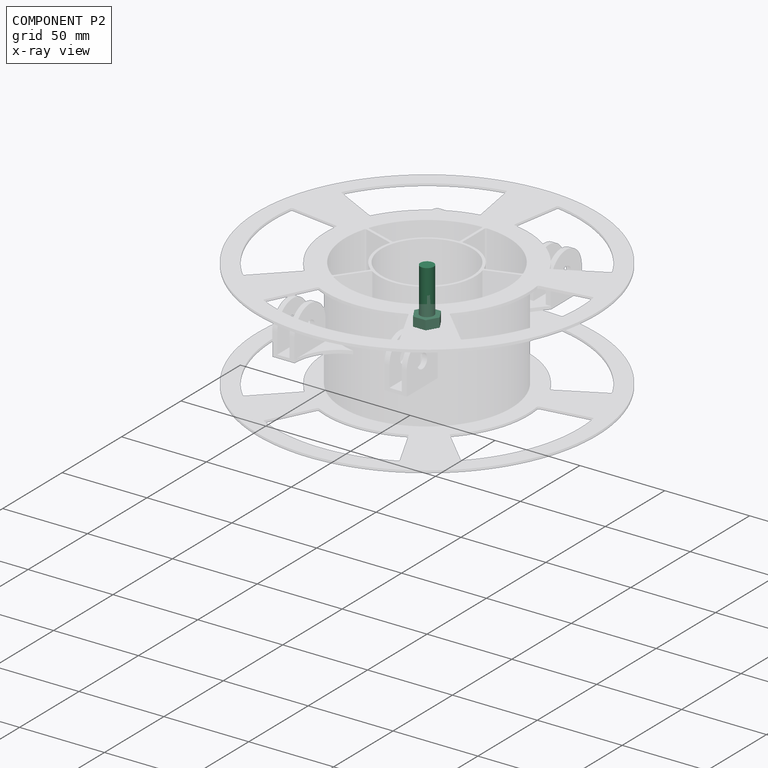
[diagram: component P2 — x-ray view]
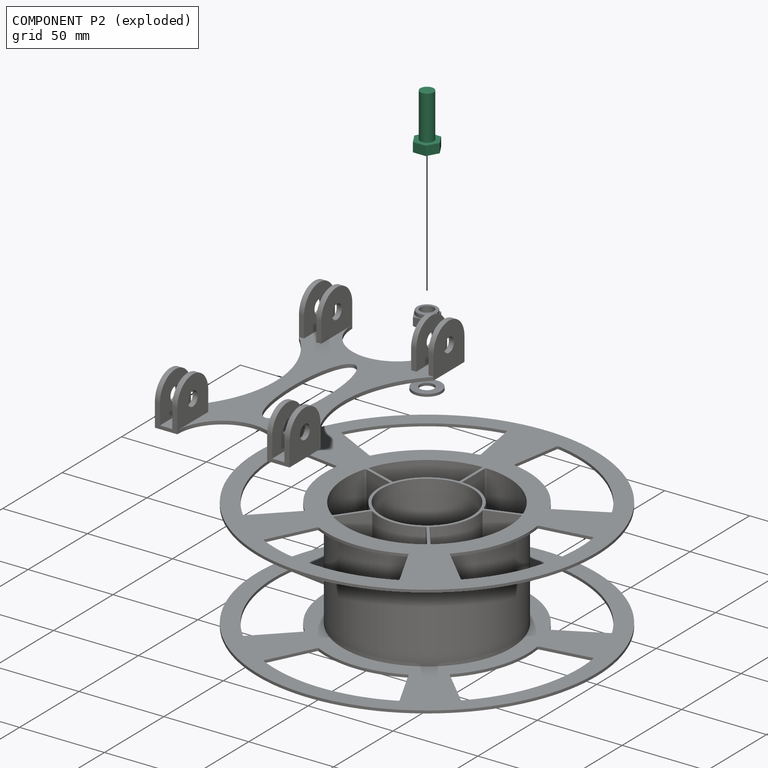
[diagram: component P2 — exploded]
COMPONENT P2 — recipe-attached ("Bolt", modeled in this document).
Held by: resting contact with P0 (derived edge); resting contact with P1 (derived edge); resting contact with P3 (derived edge).
Construction recipe (the document's own serialized feature program — sketch geometry with constraints, then the solid features built on it; lengths are millimeters unless a unit is written):

FEATURE [Sketcher::SketchObject] Sketch004
  ArcFitTolerance = 1e-06
  AttachmentSupport = -> [XY_Plane003]
  FullyConstrained = true
  MakeInternals = false
  MapMode = 5
  expr: Constraints[19] = <<Spreadsheet>>.BoltHeadSize
  sketch-geometry (7):
    g0: LineSegment StartX=7.50555 StartY=0 StartZ=0 EndX=3.75278 EndY=6.5 EndZ=0
    g1: LineSegment StartX=3.75278 StartY=6.5 StartZ=0 EndX=-3.75278 EndY=6.5 EndZ=0
    g2: LineSegment StartX=-3.75278 StartY=6.5 StartZ=0 EndX=-7.50555 EndY=9e-16 EndZ=0
    g3: LineSegment StartX=-7.50555 StartY=9e-16 StartZ=0 EndX=-3.75278 EndY=-6.5 EndZ=0
    g4: LineSegment StartX=-3.75278 StartY=-6.5 StartZ=0 EndX=3.75278 EndY=-6.5 EndZ=0
    g5: LineSegment StartX=3.75278 StartY=-6.5 StartZ=0 EndX=7.50555 EndY=0 EndZ=0
    g6: Circle [constr] CenterX=0 CenterY=0 CenterZ=0 NormalX=0 NormalY=0 NormalZ=1 AngleXU=0 Radius=7.50555
  constraints (16):
    c: Coincident(g0,g1)
    c: Coincident(g1,g2)
    c: Coincident(g2,g3)
    c: Coincident(g3,g4)
    c: Coincident(g4,g5)
    c: Coincident(g5,g0)
    c: Equal(g0, g1-g5) x5
    c: PointOnObject(g0,g6)
    c: PointOnObject(g1,g6)
    c: PointOnObject(g2,g6)
    c: PointOnObject(g3,g6)
    c: PointOnObject(g4,g6)
    c: PointOnObject(g5,g6)
    c: Coincident(g6,g-1)
    c: PointOnObject(g5,g-1)
    c: DistanceY(g3,g1) = 13
FEATURE [PartDesign::Pad] Pad002
  Direction = (0,0,1)
  Length = 5.5
  Length2 = 10
  Profile = -> Sketch004
  ReferenceAxis = -> Sketch004 [N_Axis]
  Refine = true
  Suppressed = false
  Type = 0
  expr: Length = <<Spreadsheet>>.BoltHeadHeight
FEATURE [Sketcher::SketchObject] Sketch005
  ArcFitTolerance = 1e-06
  AttachmentSupport = -> [Pad002]
  FullyConstrained = true
  MakeInternals = false
  MapMode = 5
  Placement = pos=(0,0,5.5) rot=(0,0,1;0rad)
  expr: Constraints[1] = <<Spreadsheet>>.BoltDiameter
  sketch-geometry (1):
    g0: Circle CenterX=0 CenterY=0 CenterZ=0 NormalX=0 NormalY=0 NormalZ=1 AngleXU=0 Radius=4
  constraints (2):
    c: Coincident(g0,g-1)
    c: Diameter(g0) = 8
FEATURE [PartDesign::Pad] Pad003
  BaseFeature = -> Pad002
  Direction = (0,0,1)
  Length = 26.1
  Length2 = 10
  Profile = -> Sketch005
  ReferenceAxis = -> Sketch005 [N_Axis]
  Refine = true
  Suppressed = false
  Type = 0
  expr: Length = <<Spreadsheet>>.BoltLength
FEATURE [Sketcher::SketchObject] Sketch006
  ArcFitTolerance = 1e-06
  AttachmentSupport = -> [XZ_Plane003]
  ExternalGeometry = -> [Pad003]
  FullyConstrained = true
  MakeInternals = false
  MapMode = 5
  Placement = pos=(0,0,0) rot=(1,0,0;1.5708rad)
  sketch-geometry (9):
    g0: LineSegment StartX=4 StartY=31.6 StartZ=0 EndX=4.5 EndY=31.6 EndZ=0
    g1: LineSegment StartX=4.5 StartY=31.6 StartZ=0 EndX=4 EndY=31.1 EndZ=0
    g2: LineSegment StartX=4 StartY=31.1 StartZ=0 EndX=4 EndY=31.6 EndZ=0
    g3: LineSegment StartX=7.50555 StartY=0 StartZ=0 EndX=6.30555 EndY=0 EndZ=0
    g4: LineSegment StartX=6.30555 StartY=0 StartZ=0 EndX=7.50555 EndY=-0.5 EndZ=0
    g5: LineSegment StartX=7.50555 StartY=-0.5 StartZ=0 EndX=7.50555 EndY=0 EndZ=0
    g6: LineSegment StartX=7.50555 StartY=5.5 StartZ=0 EndX=6.30555 EndY=5.5 EndZ=0
    g7: LineSegment StartX=6.30555 StartY=5.5 StartZ=0 EndX=7.50555 EndY=6 EndZ=0
    g8: LineSegment StartX=7.50555 StartY=6 StartZ=0 EndX=7.50555 EndY=5.5 EndZ=0
  constraints (24):
    c: Coincident(g-3,g0)
    c: PointOnObject(g0,g-3)
    c: Coincident(g0,g1)
    c: Coincident(g1,g2)
    c: Coincident(g2,g0)
    c: Coincident(g-4,g3)
    c: PointOnObject(g3,g-1)
    c: Coincident(g3,g4)
    c: PointOnObject(g4,g-4)
    c: Coincident(g4,g5)
    c: Coincident(g5,g3)
    c: Vertical(g2)
    c: Equal(g2,g0)
    c: DistanceY(g2,g2) = 0.5
    c: Equal(g2,g5)
    c: DistanceX(g3,g3) = 1.2
    c: Coincident(g-4,g6)
    c: Horizontal(g6)
    c: Coincident(g6,g7)
    c: PointOnObject(g7,g-4)
    c: Coincident(g7,g8)
    c: Coincident(g8,g6)
    c: Equal(g5,g8)
    c: Equal(g3,g6)
FEATURE [PartDesign::Groove] Groove
  Angle = 360
  Angle2 = 60
  Axis = (0,2e-16,1)
  Base = (0,0,0)
  BaseFeature = -> Pad003
  Profile = -> Sketch006
  ReferenceAxis = -> Sketch006 [V_Axis]
  Refine = true
  Suppressed = false
  Type = 0
FEATURE [PartDesign::CoordinateSystem] MountFace
  AttacherType = Attacher::AttachEngine3D
  AttachmentSupport = -> [Groove]
  MapMode = 11
  Placement = pos=(0,0,5.5) rot=(0,0,1;1.5708rad)
FEATURE [PartDesign::Body] Body002  label="Bolt"
  AllowCompound = false
  Group = -> [Sketch004,Pad002,Sketch005,Pad003,Sketch006,Groove,MountFace]
  Origin = -> Origin003
  Tip = -> Groove
PROVENANCE & LICENSES
Assembly and component geometry: a FreeCAD (.FCStd) document from a public repository crawl; components, placements and joints were extracted with FreeCAD and each solid tessellated.
Construction recipes: the document's own serialized feature recipes (and, for linked parts, the recipes of companion documents from the same project).
License: as declared in the source repository (recorded in the dataset sidecar).
Joints: native FreeCAD joints and A2plus constraints are mapped to standard mate types; edges marked 'derived from contact' connect touching components and are measured from the geometry, not modeled.
Verification: 5 of this assembly's 5 components carry a construction recipe (5 from this document itself); the rest are geometry-only. Every component's tessellation passed the extraction mesh gates (mesh-volume checksum against the B-rep where available, bounding-box inflation <= 2%).
Renders: orthographic iso camera (az 35 / el 25); the floor grid conveys scale (grid pitch printed in each image; no ruler). In the exploded view each component is displaced by its stored offset vector: the offsets alone carry the explosion direction (mate normal/axis signs are not orientation cues and do not encode it), and separation distances are assigned per mate-chain, not proportionally to assembly-order depth.
